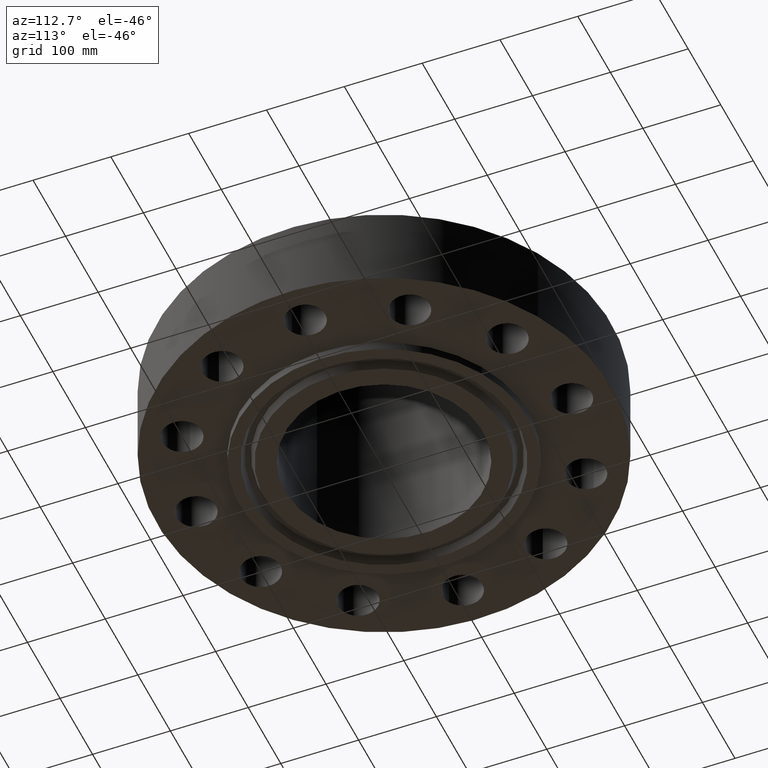
[diagram: clean part render]
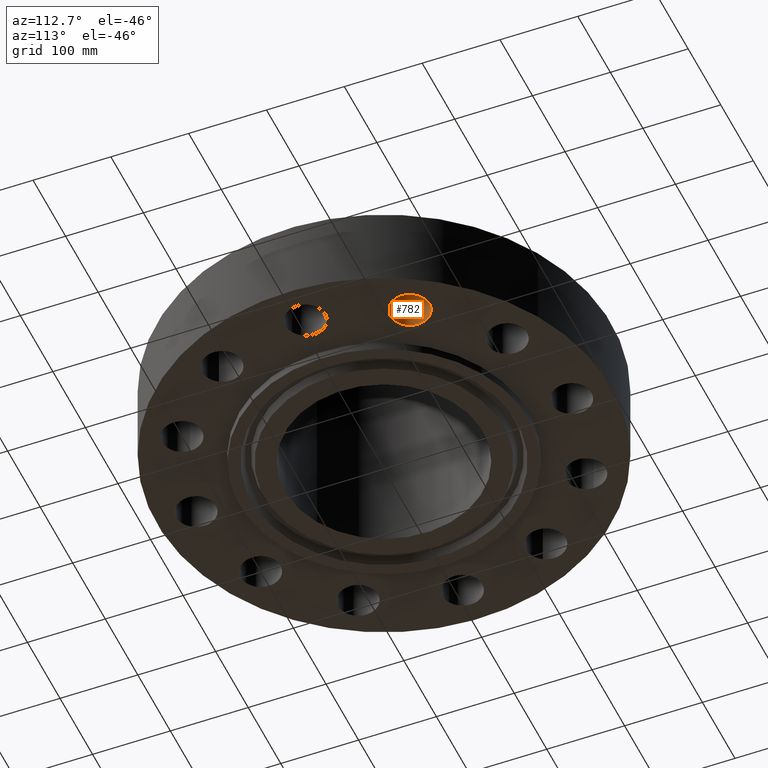
[diagram: same view with one face highlighted and labeled with its STEP entity id]
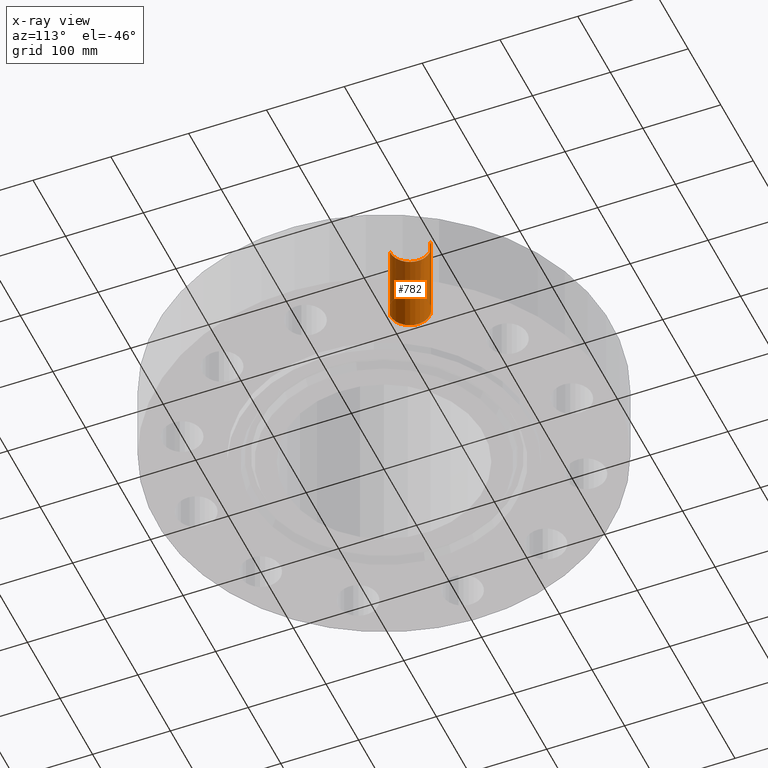
[diagram: x-ray of the same camera — body ghosted, the highlighted face saturated]
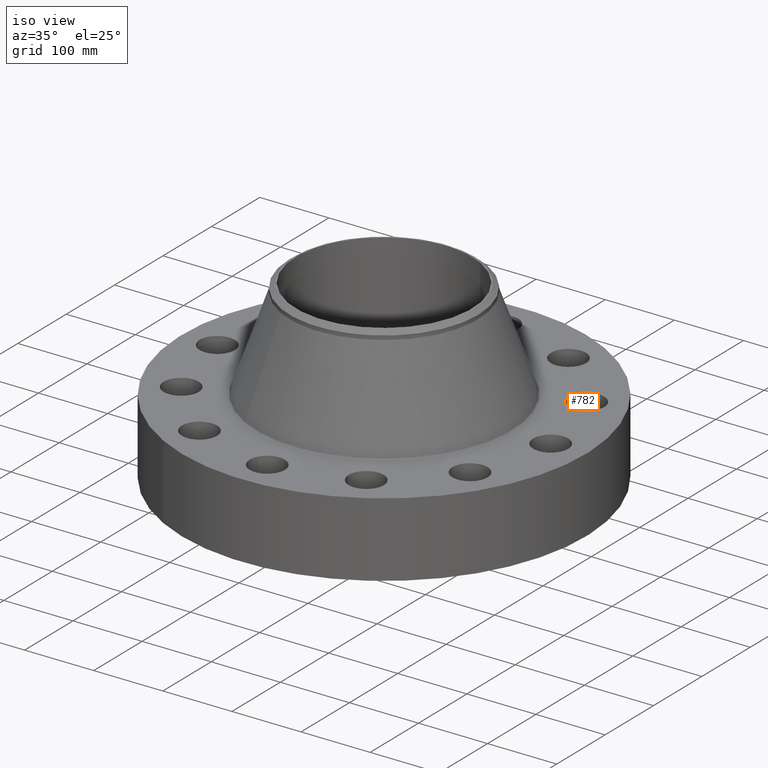
[diagram: same view with one face highlighted and labeled with its STEP entity id]
A machine part, auxiliary view. The second image highlights one B-rep face of the part: STEP entity #782.
The next image is the same camera in x-ray: the body ghosted, the highlighted face saturated — about 20% of this face is hidden behind the body in this view.
A second angle (iso view) of the same face is appended — the face is thin or edge-on in the first view.
In plain terms, the highlighted cylindrical surface (edge-blend (fillet) strip) has radius 25.4 mm, axis along (0, -0, -1).
Its self-contained STEP definition (entity closure, byte-faithful):
#527=AXIS2_PLACEMENT_3D('Circle Axis2P3D',#525,#526,$) ;
#743=AXIS2_PLACEMENT_3D('Cylinder Axis2P3D',#740,#741,#742) ;
#773=AXIS2_PLACEMENT_3D('Circle Axis2P3D',#771,#772,$) ;
#520=CARTESIAN_POINT('Vertex',(8.20364475069,5.74972156184,0.)) ;
#522=CARTESIAN_POINT('Vertex',(8.25083792128,3.7502784382,0.)) ;
#525=CARTESIAN_POINT('Axis2P3D Location',(8.22724133599,4.75000000002,0.)) ;
#740=CARTESIAN_POINT('Axis2P3D Location',(8.22724133599,4.75000000002,4.24606299214)) ;
#745=CARTESIAN_POINT('Line Origine',(8.20364475069,5.74972156184,2.12500000001)) ;
#749=CARTESIAN_POINT('Vertex',(8.20364475069,5.74972156184,4.25000000002)) ;
#752=CARTESIAN_POINT('Line Origine',(8.25083792128,3.7502784382,2.12500000001)) ;
#756=CARTESIAN_POINT('Vertex',(8.25083792128,3.7502784382,4.25000000002)) ;
#771=CARTESIAN_POINT('Axis2P3D Location',(8.22724133599,4.75000000002,4.25000000002)) ;
#526=DIRECTION('Axis2P3D Direction',(0.,0.,-0.0393700787402)) ;
#741=DIRECTION('Axis2P3D Direction',(0.,-0.,-0.0393700787402)) ;
#742=DIRECTION('Axis2P3D XDirection',(0.000928999420902,-0.039359116607,0.)) ;
#746=DIRECTION('Vector Direction',(0.,0.,-0.0393700787402)) ;
#753=DIRECTION('Vector Direction',(0.,0.,-0.0393700787402)) ;
#772=DIRECTION('Axis2P3D Direction',(0.,-0.,-0.0393700787402)) ;
#747=VECTOR('Line Direction',#746,0.0393700787402) ;
#754=VECTOR('Line Direction',#753,0.0393700787402) ;
#777=ORIENTED_EDGE('',*,*,#758,.F.) ;
#778=ORIENTED_EDGE('',*,*,#529,.T.) ;
#779=ORIENTED_EDGE('',*,*,#751,.T.) ;
#780=ORIENTED_EDGE('',*,*,#775,.F.) ;
#782=ADVANCED_FACE('PartBody',(#781),#744,.F.) ;
#528=CIRCLE('generated circle',#527,1.) ;
#774=CIRCLE('generated circle',#773,1.) ;
#744=CYLINDRICAL_SURFACE('generated cylinder',#743,1.) ;
#529=EDGE_CURVE('',#523,#521,#528,.T.) ;
#751=EDGE_CURVE('',#521,#750,#748,.F.) ;
#758=EDGE_CURVE('',#523,#757,#755,.F.) ;
#775=EDGE_CURVE('',#757,#750,#774,.T.) ;
#776=EDGE_LOOP('',(#777,#778,#779,#780)) ;
#781=FACE_OUTER_BOUND('',#776,.T.) ;
#748=LINE('Line',#745,#747) ;
#755=LINE('Line',#752,#754) ;
#521=VERTEX_POINT('',#520) ;
#523=VERTEX_POINT('',#522) ;
#750=VERTEX_POINT('',#749) ;
#757=VERTEX_POINT('',#756) ;